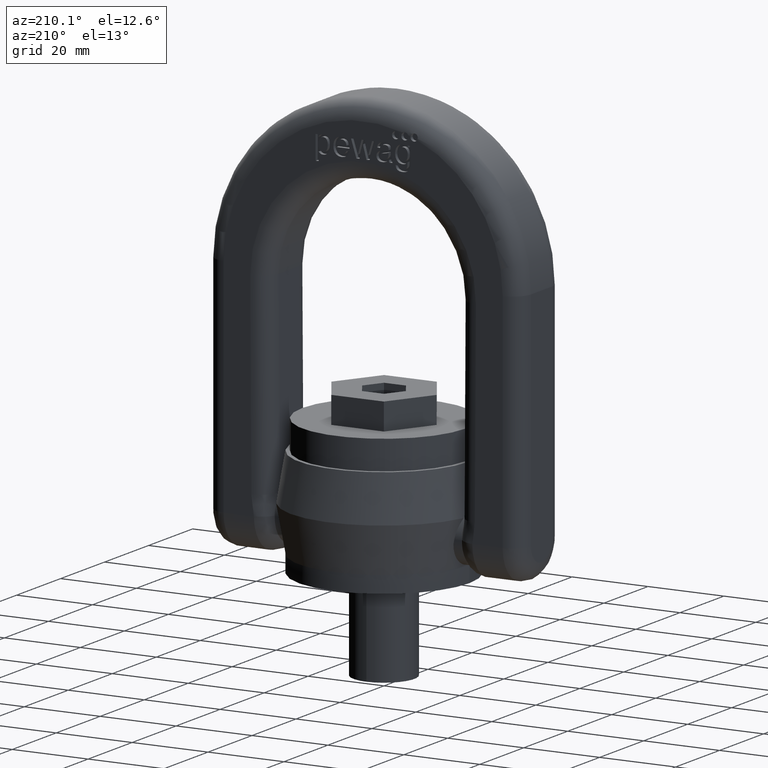
[diagram: clean part render]
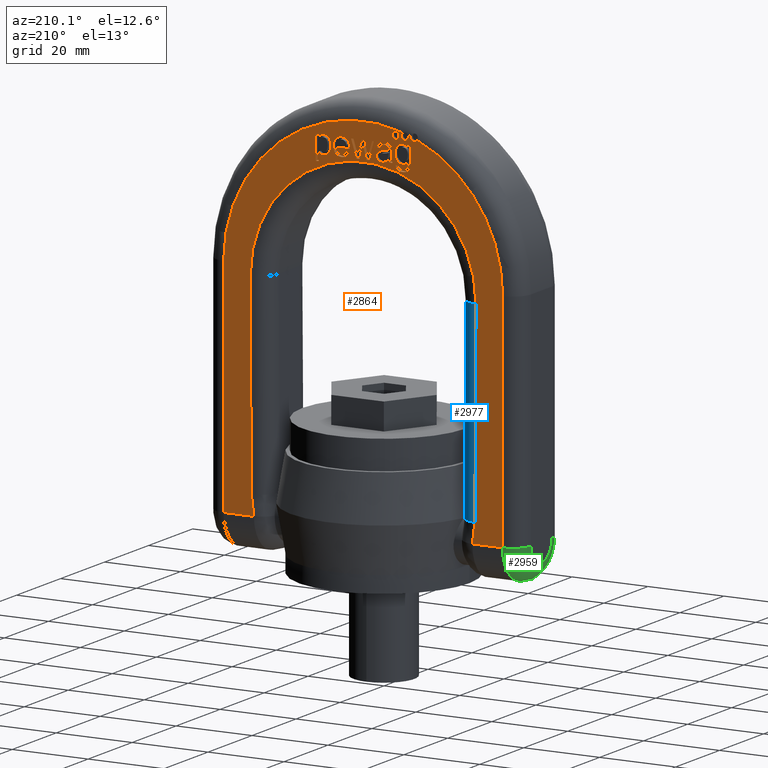
[diagram: same view with three faces highlighted in distinct colors, each labeled with its STEP entity id]
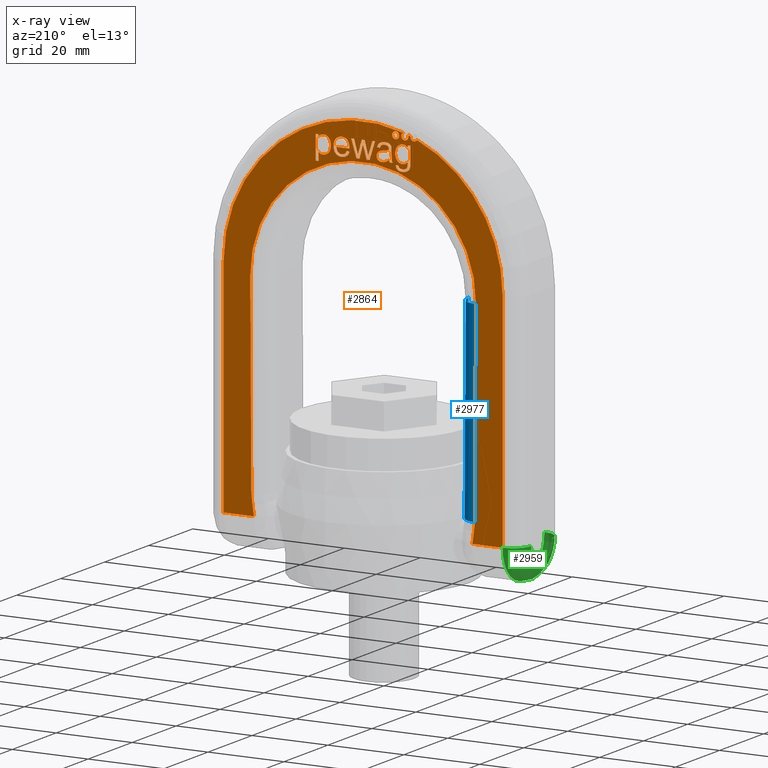
[diagram: x-ray of the same camera — body ghosted, the three highlighted faces saturated]
A machine part, auxiliary view with three faces highlighted in distinct colors.
The next image is the same camera in x-ray (body ghosted, the three faces saturated) — at least one of them is partly hidden behind the body in this view.
Their STEP definitions:

[orange] entity #2864 — the highlighted planar face has unit normal (-0, -1, 0).
#493=B_SPLINE_CURVE_WITH_KNOTS('',3,(#8098,#8099,#8100,#8101),
 .UNSPECIFIED.,.F.,.F.,(4,4),(0.,1.),.UNSPECIFIED.);
#494=B_SPLINE_CURVE_WITH_KNOTS('',3,(#8106,#8107,#8108,#8109),
 .UNSPECIFIED.,.F.,.F.,(4,4),(0.,1.),.UNSPECIFIED.);
#495=B_SPLINE_CURVE_WITH_KNOTS('',3,(#8111,#8112,#8113,#8114,#8115,#8116,
#8117,#8118,#8119,#8120),.UNSPECIFIED.,.F.,.F.,(4,2,2,2,4),(0.,0.228358481914092,
0.466434346037297,0.703045305681472,1.),.UNSPECIFIED.);
#496=B_SPLINE_CURVE_WITH_KNOTS('',3,(#8122,#8123,#8124,#8125),
 .UNSPECIFIED.,.F.,.F.,(4,4),(0.,1.),.UNSPECIFIED.);
#497=B_SPLINE_CURVE_WITH_KNOTS('',3,(#8129,#8130,#8131,#8132),
 .UNSPECIFIED.,.F.,.F.,(4,4),(0.,1.),.UNSPECIFIED.);
#498=B_SPLINE_CURVE_WITH_KNOTS('',3,(#8134,#8135,#8136,#8137),
 .UNSPECIFIED.,.F.,.F.,(4,4),(0.,1.),.UNSPECIFIED.);
#499=B_SPLINE_CURVE_WITH_KNOTS('',3,(#8139,#8140,#8141,#8142),
 .UNSPECIFIED.,.F.,.F.,(4,4),(0.,1.),.UNSPECIFIED.);
#500=B_SPLINE_CURVE_WITH_KNOTS('',3,(#8144,#8145,#8146,#8147),
 .UNSPECIFIED.,.F.,.F.,(4,4),(0.,1.),.UNSPECIFIED.);
#501=B_SPLINE_CURVE_WITH_KNOTS('',3,(#8149,#8150,#8151,#8152,#8153,#8154),
 .UNSPECIFIED.,.F.,.F.,(4,2,4),(0.,0.559782608695651,1.),.UNSPECIFIED.);
#502=B_SPLINE_CURVE_WITH_KNOTS('',3,(#8156,#8157,#8158,#8159),
 .UNSPECIFIED.,.F.,.F.,(4,4),(0.,1.),.UNSPECIFIED.);
#503=B_SPLINE_CURVE_WITH_KNOTS('',3,(#8163,#8164,#8165,#8166),
 .UNSPECIFIED.,.F.,.F.,(4,4),(0.,1.),.UNSPECIFIED.);
#504=B_SPLINE_CURVE_WITH_KNOTS('',3,(#8168,#8169,#8170,#8171,#8172,#8173),
 .UNSPECIFIED.,.F.,.F.,(4,2,4),(0.,0.476123595505616,1.),.UNSPECIFIED.);
#505=B_SPLINE_CURVE_WITH_KNOTS('',3,(#8175,#8176,#8177,#8178),
 .UNSPECIFIED.,.F.,.F.,(4,4),(0.,1.),.UNSPECIFIED.);
#506=B_SPLINE_CURVE_WITH_KNOTS('',3,(#8180,#8181,#8182,#8183,#8184,#8185,
#8186,#8187),.UNSPECIFIED.,.F.,.F.,(4,2,2,4),(0.,0.47235576923076,0.730769230769225,
1.),.UNSPECIFIED.);
#507=B_SPLINE_CURVE_WITH_KNOTS('',3,(#8191,#8192,#8193,#8194),
 .UNSPECIFIED.,.F.,.F.,(4,4),(0.,1.),.UNSPECIFIED.);
#508=B_SPLINE_CURVE_WITH_KNOTS('',3,(#8196,#8197,#8198,#8199),
 .UNSPECIFIED.,.F.,.F.,(4,4),(0.,1.),.UNSPECIFIED.);
#509=B_SPLINE_CURVE_WITH_KNOTS('',3,(#8201,#8202,#8203,#8204,#8205,#8206,
#8207,#8208,#8209,#8210),.UNSPECIFIED.,.F.,.F.,(4,2,2,2,4),(0.,0.230139294836346,
0.492074150143503,0.754009005450665,1.),.UNSPECIFIED.);
#510=B_SPLINE_CURVE_WITH_KNOTS('',3,(#8225,#8226,#8227,#8228),
 .UNSPECIFIED.,.F.,.F.,(4,4),(0.,1.),.UNSPECIFIED.);
#511=B_SPLINE_CURVE_WITH_KNOTS('',3,(#8236,#8237,#8238,#8239),
 .UNSPECIFIED.,.F.,.F.,(4,4),(0.,1.),.UNSPECIFIED.);
#512=B_SPLINE_CURVE_WITH_KNOTS('',3,(#8256,#8257,#8258,#8259,#8260,#8261),
 .UNSPECIFIED.,.F.,.F.,(4,2,4),(0.,0.329498767460973,1.),.UNSPECIFIED.);
#513=B_SPLINE_CURVE_WITH_KNOTS('',3,(#8263,#8264,#8265,#8266,#8267,#8268,
#8269,#8270),.UNSPECIFIED.,.F.,.F.,(4,2,2,4),(0.,0.361028692437345,0.681441656975489,
1.),.UNSPECIFIED.);
#514=B_SPLINE_CURVE_WITH_KNOTS('',3,(#8272,#8273,#8274,#8275),
 .UNSPECIFIED.,.F.,.F.,(4,4),(0.,1.),.UNSPECIFIED.);
#515=B_SPLINE_CURVE_WITH_KNOTS('',3,(#8279,#8280,#8281,#8282),
 .UNSPECIFIED.,.F.,.F.,(4,4),(0.,1.),.UNSPECIFIED.);
#516=B_SPLINE_CURVE_WITH_KNOTS('',3,(#8284,#8285,#8286,#8287,#8288,#8289),
 .UNSPECIFIED.,.F.,.F.,(4,2,4),(0.,0.555803571428577,1.),.UNSPECIFIED.);
#517=B_SPLINE_CURVE_WITH_KNOTS('',3,(#8291,#8292,#8293,#8294,#8295,#8296),
 .UNSPECIFIED.,.F.,.F.,(4,2,4),(0.,0.500000000000002,1.),.UNSPECIFIED.);
#518=B_SPLINE_CURVE_WITH_KNOTS('',3,(#8298,#8299,#8300,#8301,#8302,#8303,
#8304,#8305,#8306,#8307,#8308,#8309,#8310,#8311),.UNSPECIFIED.,.F.,.F.,
(4,2,2,2,2,2,4),(0.,0.15220134604599,0.327187324733594,0.502173303421195,
0.676318003365109,0.850462703309027,1.),.UNSPECIFIED.);
#519=B_SPLINE_CURVE_WITH_KNOTS('',3,(#8316,#8317,#8318,#8319),
 .UNSPECIFIED.,.F.,.F.,(4,4),(0.,1.),.UNSPECIFIED.);
#520=B_SPLINE_CURVE_WITH_KNOTS('',3,(#8324,#8325,#8326,#8327),
 .UNSPECIFIED.,.F.,.F.,(4,4),(0.,1.),.UNSPECIFIED.);
#521=B_SPLINE_CURVE_WITH_KNOTS('',3,(#8329,#8330,#8331,#8332,#8333,#8334),
 .UNSPECIFIED.,.F.,.F.,(4,2,4),(0.,0.434679334916864,1.),.UNSPECIFIED.);
#522=B_SPLINE_CURVE_WITH_KNOTS('',3,(#8336,#8337,#8338,#8339),
 .UNSPECIFIED.,.F.,.F.,(4,4),(0.,1.),.UNSPECIFIED.);
#523=B_SPLINE_CURVE_WITH_KNOTS('',3,(#8343,#8344,#8345,#8346),
 .UNSPECIFIED.,.F.,.F.,(4,4),(0.,1.),.UNSPECIFIED.);
#524=B_SPLINE_CURVE_WITH_KNOTS('',3,(#8348,#8349,#8350,#8351,#8352,#8353),
 .UNSPECIFIED.,.F.,.F.,(4,2,4),(0.,0.570469798657718,1.),.UNSPECIFIED.);
#525=B_SPLINE_CURVE_WITH_KNOTS('',3,(#8355,#8356,#8357,#8358,#8359,#8360,
#8361,#8362,#8363,#8364,#8365,#8366),.UNSPECIFIED.,.F.,.F.,(4,2,2,2,2,4),
(0.,0.122570626594234,0.245141253188471,0.49563753375242,0.746133814316365,
1.),.UNSPECIFIED.);
#526=B_SPLINE_CURVE_WITH_KNOTS('',3,(#8376,#8377,#8378,#8379),
 .UNSPECIFIED.,.F.,.F.,(4,4),(0.,1.),.UNSPECIFIED.);
#527=B_SPLINE_CURVE_WITH_KNOTS('',3,(#8381,#8382,#8383,#8384),
 .UNSPECIFIED.,.F.,.F.,(4,4),(0.,1.),.UNSPECIFIED.);
#528=B_SPLINE_CURVE_WITH_KNOTS('',3,(#8406,#8407,#8408,#8409),
 .UNSPECIFIED.,.F.,.F.,(4,4),(0.,1.),.UNSPECIFIED.);
#1792=LINE('',#6708,#2074);
#1793=LINE('',#6712,#2075);
#1922=LINE('',#8104,#2249);
#1923=LINE('',#8127,#2250);
#1924=LINE('',#8161,#2251);
#1925=LINE('',#8188,#2252);
#1926=LINE('',#8212,#2253);
#1927=LINE('',#8214,#2254);
#1928=LINE('',#8216,#2255);
#1929=LINE('',#8218,#2256);
#1930=LINE('',#8220,#2257);
#1931=LINE('',#8222,#2258);
#1932=LINE('',#8230,#2259);
#1933=LINE('',#8234,#2260);
#1934=LINE('',#8240,#2261);
#1935=LINE('',#8252,#2262);
#1936=LINE('',#8253,#2263);
#1937=LINE('',#8277,#2264);
#1938=LINE('',#8313,#2265);
#1939=LINE('',#8315,#2266);
#1940=LINE('',#8322,#2267);
#1941=LINE('',#8341,#2268);
#1942=LINE('',#8367,#2269);
#1943=LINE('',#8370,#2270);
#1944=LINE('',#8372,#2271);
#1945=LINE('',#8374,#2272);
#1946=LINE('',#8386,#2273);
#1947=LINE('',#8388,#2274);
#1948=LINE('',#8390,#2275);
#1949=LINE('',#8392,#2276);
#1950=LINE('',#8394,#2277);
#1951=LINE('',#8396,#2278);
#1952=LINE('',#8398,#2279);
#1953=LINE('',#8400,#2280);
#1954=LINE('',#8402,#2281);
#1955=LINE('',#8404,#2282);
#1956=LINE('',#8411,#2283);
#1957=LINE('',#8413,#2284);
#2074=VECTOR('',#5909,1.);
#2075=VECTOR('',#5914,1.);
#2249=VECTOR('',#6238,1.);
#2250=VECTOR('',#6239,1.);
#2251=VECTOR('',#6240,1.);
#2252=VECTOR('',#6241,1.);
#2253=VECTOR('',#6242,1.);
#2254=VECTOR('',#6243,1.);
#2255=VECTOR('',#6244,1.);
#2256=VECTOR('',#6245,1.);
#2257=VECTOR('',#6246,1.);
#2258=VECTOR('',#6247,1.);
#2259=VECTOR('',#6250,1.);
#2260=VECTOR('',#6253,1.);
#2261=VECTOR('',#6254,1.);
#2262=VECTOR('',#6265,1.);
#2263=VECTOR('',#6266,1.);
#2264=VECTOR('',#6267,1.);
#2265=VECTOR('',#6268,1.);
#2266=VECTOR('',#6269,1.);
#2267=VECTOR('',#6270,1.);
#2268=VECTOR('',#6271,1.);
#2269=VECTOR('',#6272,1.);
#2270=VECTOR('',#6273,1.);
#2271=VECTOR('',#6274,1.);
#2272=VECTOR('',#6275,1.);
#2273=VECTOR('',#6276,1.);
#2274=VECTOR('',#6277,1.);
#2275=VECTOR('',#6278,1.);
#2276=VECTOR('',#6279,1.);
#2277=VECTOR('',#6280,1.);
#2278=VECTOR('',#6281,1.);
#2279=VECTOR('',#6282,1.);
#2280=VECTOR('',#6283,1.);
#2281=VECTOR('',#6284,1.);
#2282=VECTOR('',#6285,1.);
#2283=VECTOR('',#6286,1.);
#2284=VECTOR('',#6287,1.);
#2693=PLANE('',#5717);
#2864=ADVANCED_FACE('',(#3040,#3041,#3042,#3043,#3044,#3045,#3046),#2693,
 .F.);
#3040=FACE_BOUND('',#3210,.T.);
#3041=FACE_BOUND('',#3211,.T.);
#3042=FACE_BOUND('',#3212,.T.);
#3043=FACE_BOUND('',#3213,.T.);
#3044=FACE_BOUND('',#3214,.T.);
#3045=FACE_BOUND('',#3215,.T.);
#3046=FACE_BOUND('',#3216,.T.);
#3210=EDGE_LOOP('',(#3953,#3954,#3955,#3956,#3957,#3958,#3959,#3960,#3961,
#3962,#3963,#3964,#3965,#3966,#3967,#3968,#3969));
#3211=EDGE_LOOP('',(#3970,#3971,#3972,#3973,#3974,#3975,#3976,#3977,#3978,
#3979));
#3212=EDGE_LOOP('',(#3980));
#3213=EDGE_LOOP('',(#3981,#3982,#3983,#3984,#3985,#3986,#3987,#3988,#3989,
#3990,#3991,#3992,#3993,#3994));
#3214=EDGE_LOOP('',(#3995,#3996,#3997,#3998,#3999,#4000,#4001,#4002,#4003,
#4004,#4005));
#3215=EDGE_LOOP('',(#4006,#4007,#4008,#4009,#4010,#4011,#4012,#4013,#4014));
#3216=EDGE_LOOP('',(#4015,#4016,#4017,#4018,#4019,#4020,#4021,#4022,#4023,
#4024,#4025,#4026,#4027,#4028,#4029,#4030,#4031,#4032,#4033));
#3953=ORIENTED_EDGE('',*,*,#5267,.F.);
#3954=ORIENTED_EDGE('',*,*,#5268,.F.);
#3955=ORIENTED_EDGE('',*,*,#5269,.F.);
#3956=ORIENTED_EDGE('',*,*,#5270,.F.);
#3957=ORIENTED_EDGE('',*,*,#5271,.F.);
#3958=ORIENTED_EDGE('',*,*,#5272,.F.);
#3959=ORIENTED_EDGE('',*,*,#5273,.F.);
#3960=ORIENTED_EDGE('',*,*,#5274,.F.);
#3961=ORIENTED_EDGE('',*,*,#5275,.F.);
#3962=ORIENTED_EDGE('',*,*,#5276,.F.);
#3963=ORIENTED_EDGE('',*,*,#5277,.F.);
#3964=ORIENTED_EDGE('',*,*,#5278,.F.);
#3965=ORIENTED_EDGE('',*,*,#5279,.F.);
#3966=ORIENTED_EDGE('',*,*,#5280,.F.);
#3967=ORIENTED_EDGE('',*,*,#5281,.F.);
#3968=ORIENTED_EDGE('',*,*,#5282,.F.);
#3969=ORIENTED_EDGE('',*,*,#5283,.F.);
#3970=ORIENTED_EDGE('',*,*,#5284,.F.);
#3971=ORIENTED_EDGE('',*,*,#5285,.F.);
#3972=ORIENTED_EDGE('',*,*,#5286,.F.);
#3973=ORIENTED_EDGE('',*,*,#5287,.F.);
#3974=ORIENTED_EDGE('',*,*,#5288,.F.);
#3975=ORIENTED_EDGE('',*,*,#5289,.F.);
#3976=ORIENTED_EDGE('',*,*,#5290,.F.);
#3977=ORIENTED_EDGE('',*,*,#5291,.F.);
#3978=ORIENTED_EDGE('',*,*,#5292,.F.);
#3979=ORIENTED_EDGE('',*,*,#5293,.F.);
#3980=ORIENTED_EDGE('',*,*,#5294,.F.);
#3981=ORIENTED_EDGE('',*,*,#4989,.T.);
#3982=ORIENTED_EDGE('',*,*,#5295,.T.);
#3983=ORIENTED_EDGE('',*,*,#5296,.T.);
#3984=ORIENTED_EDGE('',*,*,#5297,.T.);
#3985=ORIENTED_EDGE('',*,*,#5298,.T.);
#3986=ORIENTED_EDGE('',*,*,#5299,.T.);
#3987=ORIENTED_EDGE('',*,*,#4991,.T.);
#3988=ORIENTED_EDGE('',*,*,#5300,.T.);
#3989=ORIENTED_EDGE('',*,*,#5301,.T.);
#3990=ORIENTED_EDGE('',*,*,#5302,.F.);
#3991=ORIENTED_EDGE('',*,*,#5303,.T.);
#3992=ORIENTED_EDGE('',*,*,#5304,.F.);
#3993=ORIENTED_EDGE('',*,*,#5305,.T.);
#3994=ORIENTED_EDGE('',*,*,#5306,.T.);
#3995=ORIENTED_EDGE('',*,*,#5307,.F.);
#3996=ORIENTED_EDGE('',*,*,#5308,.F.);
#3997=ORIENTED_EDGE('',*,*,#5309,.F.);
#3998=ORIENTED_EDGE('',*,*,#5310,.F.);
#3999=ORIENTED_EDGE('',*,*,#5311,.F.);
#4000=ORIENTED_EDGE('',*,*,#5312,.F.);
#4001=ORIENTED_EDGE('',*,*,#5313,.F.);
#4002=ORIENTED_EDGE('',*,*,#5314,.F.);
#4003=ORIENTED_EDGE('',*,*,#5315,.F.);
#4004=ORIENTED_EDGE('',*,*,#5316,.F.);
#4005=ORIENTED_EDGE('',*,*,#5317,.F.);
#4006=ORIENTED_EDGE('',*,*,#5318,.F.);
#4007=ORIENTED_EDGE('',*,*,#5319,.F.);
#4008=ORIENTED_EDGE('',*,*,#5320,.F.);
#4009=ORIENTED_EDGE('',*,*,#5321,.F.);
#4010=ORIENTED_EDGE('',*,*,#5322,.F.);
#4011=ORIENTED_EDGE('',*,*,#5323,.F.);
#4012=ORIENTED_EDGE('',*,*,#5324,.F.);
#4013=ORIENTED_EDGE('',*,*,#5325,.F.);
#4014=ORIENTED_EDGE('',*,*,#5326,.F.);
#4015=ORIENTED_EDGE('',*,*,#5327,.F.);
#4016=ORIENTED_EDGE('',*,*,#5328,.F.);
#4017=ORIENTED_EDGE('',*,*,#5329,.F.);
#4018=ORIENTED_EDGE('',*,*,#5330,.F.);
#4019=ORIENTED_EDGE('',*,*,#5331,.F.);
#4020=ORIENTED_EDGE('',*,*,#5332,.F.);
#4021=ORIENTED_EDGE('',*,*,#5333,.F.);
#4022=ORIENTED_EDGE('',*,*,#5334,.F.);
#4023=ORIENTED_EDGE('',*,*,#5335,.F.);
#4024=ORIENTED_EDGE('',*,*,#5336,.F.);
#4025=ORIENTED_EDGE('',*,*,#5337,.F.);
#4026=ORIENTED_EDGE('',*,*,#5338,.F.);
#4027=ORIENTED_EDGE('',*,*,#5339,.F.);
#4028=ORIENTED_EDGE('',*,*,#5340,.F.);
#4029=ORIENTED_EDGE('',*,*,#5341,.F.);
#4030=ORIENTED_EDGE('',*,*,#5342,.F.);
#4031=ORIENTED_EDGE('',*,*,#5343,.F.);
#4032=ORIENTED_EDGE('',*,*,#5344,.F.);
#4033=ORIENTED_EDGE('',*,*,#5345,.F.);
#4577=VERTEX_POINT('',#6707);
#4578=VERTEX_POINT('',#6709);
#4579=VERTEX_POINT('',#6713);
#4580=VERTEX_POINT('',#6714);
#4769=VERTEX_POINT('',#8102);
#4770=VERTEX_POINT('',#8103);
#4771=VERTEX_POINT('',#8105);
#4772=VERTEX_POINT('',#8110);
#4773=VERTEX_POINT('',#8121);
#4774=VERTEX_POINT('',#8126);
#4775=VERTEX_POINT('',#8128);
#4776=VERTEX_POINT('',#8133);
#4777=VERTEX_POINT('',#8138);
#4778=VERTEX_POINT('',#8143);
#4779=VERTEX_POINT('',#8148);
#4780=VERTEX_POINT('',#8155);
#4781=VERTEX_POINT('',#8160);
#4782=VERTEX_POINT('',#8162);
#4783=VERTEX_POINT('',#8167);
#4784=VERTEX_POINT('',#8174);
#4785=VERTEX_POINT('',#8179);
#4786=VERTEX_POINT('',#8189);
#4787=VERTEX_POINT('',#8190);
#4788=VERTEX_POINT('',#8195);
#4789=VERTEX_POINT('',#8200);
#4790=VERTEX_POINT('',#8211);
#4791=VERTEX_POINT('',#8213);
#4792=VERTEX_POINT('',#8215);
#4793=VERTEX_POINT('',#8217);
#4794=VERTEX_POINT('',#8219);
#4795=VERTEX_POINT('',#8221);
#4796=VERTEX_POINT('',#8224);
#4797=VERTEX_POINT('',#8229);
#4798=VERTEX_POINT('',#8231);
#4799=VERTEX_POINT('',#8233);
#4800=VERTEX_POINT('',#8235);
#4801=VERTEX_POINT('',#8241);
#4802=VERTEX_POINT('',#8243);
#4803=VERTEX_POINT('',#8245);
#4804=VERTEX_POINT('',#8247);
#4805=VERTEX_POINT('',#8249);
#4806=VERTEX_POINT('',#8251);
#4807=VERTEX_POINT('',#8254);
#4808=VERTEX_POINT('',#8255);
#4809=VERTEX_POINT('',#8262);
#4810=VERTEX_POINT('',#8271);
#4811=VERTEX_POINT('',#8276);
#4812=VERTEX_POINT('',#8278);
#4813=VERTEX_POINT('',#8283);
#4814=VERTEX_POINT('',#8290);
#4815=VERTEX_POINT('',#8297);
#4816=VERTEX_POINT('',#8312);
#4817=VERTEX_POINT('',#8314);
#4818=VERTEX_POINT('',#8320);
#4819=VERTEX_POINT('',#8321);
#4820=VERTEX_POINT('',#8323);
#4821=VERTEX_POINT('',#8328);
#4822=VERTEX_POINT('',#8335);
#4823=VERTEX_POINT('',#8340);
#4824=VERTEX_POINT('',#8342);
#4825=VERTEX_POINT('',#8347);
#4826=VERTEX_POINT('',#8354);
#4827=VERTEX_POINT('',#8368);
#4828=VERTEX_POINT('',#8369);
#4829=VERTEX_POINT('',#8371);
#4830=VERTEX_POINT('',#8373);
#4831=VERTEX_POINT('',#8375);
#4832=VERTEX_POINT('',#8380);
#4833=VERTEX_POINT('',#8385);
#4834=VERTEX_POINT('',#8387);
#4835=VERTEX_POINT('',#8389);
#4836=VERTEX_POINT('',#8391);
#4837=VERTEX_POINT('',#8393);
#4838=VERTEX_POINT('',#8395);
#4839=VERTEX_POINT('',#8397);
#4840=VERTEX_POINT('',#8399);
#4841=VERTEX_POINT('',#8401);
#4842=VERTEX_POINT('',#8403);
#4843=VERTEX_POINT('',#8405);
#4844=VERTEX_POINT('',#8410);
#4845=VERTEX_POINT('',#8412);
#4989=EDGE_CURVE('',#4578,#4577,#1792,.T.);
#4991=EDGE_CURVE('',#4579,#4580,#1793,.T.);
#5267=EDGE_CURVE('',#4769,#4770,#493,.T.);
#5268=EDGE_CURVE('',#4771,#4769,#1922,.T.);
#5269=EDGE_CURVE('',#4772,#4771,#494,.T.);
#5270=EDGE_CURVE('',#4773,#4772,#495,.T.);
#5271=EDGE_CURVE('',#4774,#4773,#496,.T.);
#5272=EDGE_CURVE('',#4775,#4774,#1923,.T.);
#5273=EDGE_CURVE('',#4776,#4775,#497,.T.);
#5274=EDGE_CURVE('',#4777,#4776,#498,.T.);
#5275=EDGE_CURVE('',#4778,#4777,#499,.T.);
#5276=EDGE_CURVE('',#4779,#4778,#500,.T.);
#5277=EDGE_CURVE('',#4780,#4779,#501,.T.);
#5278=EDGE_CURVE('',#4781,#4780,#502,.T.);
#5279=EDGE_CURVE('',#4782,#4781,#1924,.T.);
#5280=EDGE_CURVE('',#4783,#4782,#503,.T.);
#5281=EDGE_CURVE('',#4784,#4783,#504,.T.);
#5282=EDGE_CURVE('',#4785,#4784,#505,.T.);
#5283=EDGE_CURVE('',#4770,#4785,#506,.T.);
#5284=EDGE_CURVE('',#4786,#4787,#1925,.T.);
#5285=EDGE_CURVE('',#4788,#4786,#507,.T.);
#5286=EDGE_CURVE('',#4789,#4788,#508,.T.);
#5287=EDGE_CURVE('',#4790,#4789,#509,.T.);
#5288=EDGE_CURVE('',#4791,#4790,#1926,.T.);
#5289=EDGE_CURVE('',#4792,#4791,#1927,.T.);
#5290=EDGE_CURVE('',#4793,#4792,#1928,.T.);
#5291=EDGE_CURVE('',#4794,#4793,#1929,.T.);
#5292=EDGE_CURVE('',#4795,#4794,#1930,.T.);
#5293=EDGE_CURVE('',#4787,#4795,#1931,.T.);
#5294=EDGE_CURVE('',#4796,#4796,#5571,.T.);
#5295=EDGE_CURVE('',#4577,#4797,#510,.T.);
#5296=EDGE_CURVE('',#4797,#4798,#1932,.T.);
#5297=EDGE_CURVE('',#4798,#4799,#5572,.T.);
#5298=EDGE_CURVE('',#4799,#4800,#1933,.T.);
#5299=EDGE_CURVE('',#4800,#4579,#511,.T.);
#5300=EDGE_CURVE('',#4580,#4801,#1934,.T.);
#5301=EDGE_CURVE('',#4801,#4802,#5573,.T.);
#5302=EDGE_CURVE('',#4803,#4802,#5574,.T.);
#5303=EDGE_CURVE('',#4803,#4804,#5575,.T.);
#5304=EDGE_CURVE('',#4805,#4804,#5576,.T.);
#5305=EDGE_CURVE('',#4805,#4806,#5577,.T.);
#5306=EDGE_CURVE('',#4806,#4578,#1935,.T.);
#5307=EDGE_CURVE('',#4807,#4808,#1936,.T.);
#5308=EDGE_CURVE('',#4809,#4807,#512,.T.);
#5309=EDGE_CURVE('',#4810,#4809,#513,.T.);
#5310=EDGE_CURVE('',#4811,#4810,#514,.T.);
#5311=EDGE_CURVE('',#4812,#4811,#1937,.T.);
#5312=EDGE_CURVE('',#4813,#4812,#515,.T.);
#5313=EDGE_CURVE('',#4814,#4813,#516,.T.);
#5314=EDGE_CURVE('',#4815,#4814,#517,.T.);
#5315=EDGE_CURVE('',#4816,#4815,#518,.T.);
#5316=EDGE_CURVE('',#4817,#4816,#1938,.T.);
#5317=EDGE_CURVE('',#4808,#4817,#1939,.T.);
#5318=EDGE_CURVE('',#4818,#4819,#519,.T.);
#5319=EDGE_CURVE('',#4820,#4818,#1940,.T.);
#5320=EDGE_CURVE('',#4821,#4820,#520,.T.);
#5321=EDGE_CURVE('',#4822,#4821,#521,.T.);
#5322=EDGE_CURVE('',#4823,#4822,#522,.T.);
#5323=EDGE_CURVE('',#4824,#4823,#1941,.T.);
#5324=EDGE_CURVE('',#4825,#4824,#523,.T.);
#5325=EDGE_CURVE('',#4826,#4825,#524,.T.);
#5326=EDGE_CURVE('',#4819,#4826,#525,.T.);
#5327=EDGE_CURVE('',#4827,#4828,#1942,.T.);
#5328=EDGE_CURVE('',#4829,#4827,#1943,.T.);
#5329=EDGE_CURVE('',#4830,#4829,#1944,.T.);
#5330=EDGE_CURVE('',#4831,#4830,#1945,.T.);
#5331=EDGE_CURVE('',#4832,#4831,#526,.T.);
#5332=EDGE_CURVE('',#4833,#4832,#527,.T.);
#5333=EDGE_CURVE('',#4834,#4833,#1946,.T.);
#5334=EDGE_CURVE('',#4835,#4834,#1947,.T.);
#5335=EDGE_CURVE('',#4836,#4835,#1948,.T.);
#5336=EDGE_CURVE('',#4837,#4836,#1949,.T.);
#5337=EDGE_CURVE('',#4838,#4837,#1950,.T.);
#5338=EDGE_CURVE('',#4839,#4838,#1951,.T.);
#5339=EDGE_CURVE('',#4840,#4839,#1952,.T.);
#5340=EDGE_CURVE('',#4841,#4840,#1953,.T.);
#5341=EDGE_CURVE('',#4842,#4841,#1954,.T.);
#5342=EDGE_CURVE('',#4843,#4842,#1955,.T.);
#5343=EDGE_CURVE('',#4844,#4843,#528,.T.);
#5344=EDGE_CURVE('',#4845,#4844,#1956,.T.);
#5345=EDGE_CURVE('',#4828,#4845,#1957,.T.);
#5571=CIRCLE('',#5710,0.9375);
#5572=CIRCLE('',#5711,29.75);
#5573=CIRCLE('',#5712,36.75);
#5574=CIRCLE('',#5713,0.9375);
#5575=CIRCLE('',#5714,36.75);
#5576=CIRCLE('',#5715,0.9375);
#5577=CIRCLE('',#5716,36.75);
#5710=AXIS2_PLACEMENT_3D('',#8223,#6248,#6249);
#5711=AXIS2_PLACEMENT_3D('',#8232,#6251,#6252);
#5712=AXIS2_PLACEMENT_3D('',#8242,#6255,#6256);
#5713=AXIS2_PLACEMENT_3D('',#8244,#6257,#6258);
#5714=AXIS2_PLACEMENT_3D('',#8246,#6259,#6260);
#5715=AXIS2_PLACEMENT_3D('',#8248,#6261,#6262);
#5716=AXIS2_PLACEMENT_3D('',#8250,#6263,#6264);
#5717=AXIS2_PLACEMENT_3D('',#8414,#6288,#6289);
#5909=DIRECTION('',(-1.,2.34291072916505E-15,1.44314929616228E-15));
#5914=DIRECTION('',(-1.,2.34291072916505E-15,1.12861527352708E-15));
#6238=DIRECTION('',(-1.,2.34291072916505E-15,0.));
#6239=DIRECTION('',(0.989370262977938,-2.31800620424786E-15,-0.145418302613414));
#6240=DIRECTION('',(-0.991928985003783,2.32400106153516E-15,-0.126794671454937));
#6241=DIRECTION('',(1.,-2.34291072916505E-15,0.));
#6242=DIRECTION('',(-1.,2.34291072916505E-15,0.));
#6243=DIRECTION('',(0.,0.,1.));
#6244=DIRECTION('',(-1.,2.34291072916505E-15,0.));
#6245=DIRECTION('',(0.,0.,-1.));
#6246=DIRECTION('',(1.,-2.34291072916505E-15,0.));
#6247=DIRECTION('',(0.,0.,1.));
#6248=DIRECTION('',(2.34291072916505E-15,1.,0.));
#6249=DIRECTION('',(0.,0.,0.999999999999994));
#6250=DIRECTION('',(0.00584341179519027,-1.36905921898809E-17,0.999982927123555));
#6251=DIRECTION('',(-2.34291072916505E-15,-1.,0.));
#6252=DIRECTION('',(1.,-2.33240131223772E-15,0.));
#6253=DIRECTION('',(0.00584341179519027,-1.36905921898809E-17,-0.999982927123555));
#6254=DIRECTION('',(4.06377388222971E-16,-9.52105942957669E-31,1.));
#6255=DIRECTION('',(2.34291072916505E-15,1.,0.));
#6256=DIRECTION('',(1.,-2.36016799452627E-15,0.));
#6257=DIRECTION('',(2.34291072916505E-15,1.,0.));
#6258=DIRECTION('',(0.,0.,0.999999999999994));
#6259=DIRECTION('',(2.34291072916505E-15,1.,0.));
#6260=DIRECTION('',(1.,-2.36016799452627E-15,0.));
#6261=DIRECTION('',(2.34291072916505E-15,1.,0.));
#6262=DIRECTION('',(0.,0.,0.999999999999994));
#6263=DIRECTION('',(2.34291072916505E-15,1.,0.));
#6264=DIRECTION('',(1.,-2.36016799452627E-15,0.));
#6265=DIRECTION('',(4.06377388222971E-16,-9.52105942957669E-31,-1.));
#6266=DIRECTION('',(1.,-2.34291072916505E-15,0.));
#6267=DIRECTION('',(0.988666662925713,-2.31635773213646E-15,0.150127377980618));
#6268=DIRECTION('',(1.,-2.34291072916505E-15,0.));
#6269=DIRECTION('',(0.,0.,-1.));
#6270=DIRECTION('',(-1.,2.34291072916505E-15,0.));
#6271=DIRECTION('',(0.992687288142565,-2.32577769809497E-15,0.120714323757207));
#6272=DIRECTION('',(1.,-2.34291072916505E-15,0.));
#6273=DIRECTION('',(-0.304245570453574,7.12820211316619E-16,0.952593634693923));
#6274=DIRECTION('',(-1.,2.34291072916505E-15,0.));
#6275=DIRECTION('',(-0.259135455314435,6.0713123856326E-16,-0.965840988879112));
#6276=DIRECTION('',(-1.,2.34291072916505E-15,0.));
#6277=DIRECTION('',(-0.254367653151691,5.95960703721632E-16,0.967107593305988));
#6278=DIRECTION('',(-1.,2.34291072916505E-15,0.));
#6279=DIRECTION('',(-0.298320908470944,6.9893925719084E-16,-0.954465628280595));
#6280=DIRECTION('',(1.,-2.34291072916505E-15,0.));
#6281=DIRECTION('',(0.269463722620021,-6.31329446847201E-16,0.963010541059526));
#6282=DIRECTION('',(0.247736970080357,-5.80425605212109E-16,-0.968827329122896));
#6283=DIRECTION('',(0.26605956351618,-6.23353805959027E-16,-0.963956590652079));
#6284=DIRECTION('',(1.,-2.34291072916505E-15,0.));
#6285=DIRECTION('',(0.253070161005815,-5.92920795452051E-16,0.96744792811215));
#6286=DIRECTION('',(1.,-2.34291072916505E-15,0.));
#6287=DIRECTION('',(0.287282618696351,-6.73077529646312E-16,-0.957845862858407));
#6288=DIRECTION('',(-2.34291072916505E-15,-1.,0.));
#6289=DIRECTION('',(0.,0.,1.));
#6707=CARTESIAN_POINT('',(28.7875321066015,9.49999999999993,11.7));
#6708=CARTESIAN_POINT('',(-5.89916534468686E-14,9.5,11.7));
#6709=CARTESIAN_POINT('',(36.75,9.49999999999991,11.7));
#6712=CARTESIAN_POINT('',(-4.12833879725066E-14,9.5,11.7));
#6713=CARTESIAN_POINT('',(-28.7875321066015,9.50000000000007,11.7));
#6714=CARTESIAN_POINT('',(-36.75,9.50000000000009,11.7000000000001));
#8098=CARTESIAN_POINT('',(-7.78047113945466,9.50000000000002,98.3333333333333));
#8099=CARTESIAN_POINT('',(-7.66171015813105,9.50000000000002,98.5379892555641));
#8100=CARTESIAN_POINT('',(-7.59012819678531,9.50000000000002,98.7474418009721));
#8101=CARTESIAN_POINT('',(-7.56572525541744,9.50000000000002,98.9616909695574));
#8102=CARTESIAN_POINT('',(-7.78047113945466,9.50000000000002,98.3333333333333));
#8103=CARTESIAN_POINT('',(-7.56572525541744,9.50000000000002,98.9616909695574));
#8104=CARTESIAN_POINT('',(2.2257651927068E-14,9.5,98.3333333333333));
#8105=CARTESIAN_POINT('',(-6.96053230949436,9.50000000000002,98.3333333333333));
#8106=CARTESIAN_POINT('',(-6.79947289646644,9.50000000000002,98.8913404962906));
#8107=CARTESIAN_POINT('',(-6.83038328886574,9.50000000000002,98.661102583781));
#8108=CARTESIAN_POINT('',(-6.88406975987504,9.50000000000002,98.4756331542594));
#8109=CARTESIAN_POINT('',(-6.96053230949436,9.50000000000002,98.3333333333333));
#8110=CARTESIAN_POINT('',(-6.79947289646644,9.50000000000002,98.8913404962906));
#8111=CARTESIAN_POINT('',(-3.93782130539466,9.50000000000001,100.45823740087));
#8112=CARTESIAN_POINT('',(-3.66776208759028,9.50000000000001,100.215208493221));
#8113=CARTESIAN_POINT('',(-3.53273247868809,9.50000000000001,99.9066257354822));
#8114=CARTESIAN_POINT('',(-3.53273247868809,9.50000000000001,99.1391660271169));
#8115=CARTESIAN_POINT('',(-3.67264267586385,9.50000000000001,98.8241877718087));
#8116=CARTESIAN_POINT('',(-4.23380541710737,9.50000000000001,98.3460011590625));
#8117=CARTESIAN_POINT('',(-4.6178499381792,9.50000000000001,98.2262087490407));
#8118=CARTESIAN_POINT('',(-5.71110171145961,9.50000000000001,98.2262087490407));
#8119=CARTESIAN_POINT('',(-6.27562308843625,9.50000000000001,98.4484522895881));
#8120=CARTESIAN_POINT('',(-6.79947289646644,9.50000000000002,98.8913404962906));
#8121=CARTESIAN_POINT('',(-3.93782130539466,9.50000000000001,100.45823740087));
#8122=CARTESIAN_POINT('',(-5.34668445369947,9.50000000000001,100.942696341775));
#8123=CARTESIAN_POINT('',(-4.67804386021994,9.50000000000001,100.862752622154));
#8124=CARTESIAN_POINT('',(-4.20950738595691,9.50000000000001,100.701266308519));
#8125=CARTESIAN_POINT('',(-3.93782130539466,9.50000000000001,100.45823740087));
#8126=CARTESIAN_POINT('',(-5.34668445369947,9.50000000000001,100.942696341775));
#8127=CARTESIAN_POINT('',(4.62648596825265,9.49999999999999,99.4768330864262));
#8128=CARTESIAN_POINT('',(-6.07551896921974,9.50000000000001,101.049820926068));
#8129=CARTESIAN_POINT('',(-6.74741328821499,9.50000000000002,101.206510616526));
#8130=CARTESIAN_POINT('',(-6.5700852476085,9.50000000000002,101.144154515221));
#8131=CARTESIAN_POINT('',(-6.34720504978199,9.50000000000002,101.091391660271));
#8132=CARTESIAN_POINT('',(-6.07551896921974,9.50000000000001,101.049820926068));
#8133=CARTESIAN_POINT('',(-6.74741328821499,9.50000000000002,101.206510616526));
#8134=CARTESIAN_POINT('',(-6.72626407236284,9.50000000000002,101.694167306216));
#8135=CARTESIAN_POINT('',(-6.73927897442571,9.50000000000002,101.599833717063));
#8136=CARTESIAN_POINT('',(-6.74741328821499,9.50000000000002,101.436748529036));
#8137=CARTESIAN_POINT('',(-6.74741328821499,9.50000000000002,101.206510616526));
#8138=CARTESIAN_POINT('',(-6.72626407236284,9.50000000000002,101.694167306216));
#8139=CARTESIAN_POINT('',(-6.59774191449208,9.50000000000002,101.991557943208));
#8140=CARTESIAN_POINT('',(-6.66769701307996,9.50000000000002,101.889229982093));
#8141=CARTESIAN_POINT('',(-6.71162230754212,9.50000000000002,101.790099769762));
#8142=CARTESIAN_POINT('',(-6.72626407236284,9.50000000000002,101.694167306216));
#8143=CARTESIAN_POINT('',(-6.59774191449208,9.50000000000002,101.991557943208));
#8144=CARTESIAN_POINT('',(-6.25772759809981,9.50000000000001,102.237784599642));
#8145=CARTESIAN_POINT('',(-6.41390642285415,9.50000000000002,102.175428498337));
#8146=CARTESIAN_POINT('',(-6.52615995314634,9.50000000000002,102.093885904323));
#8147=CARTESIAN_POINT('',(-6.59774191449208,9.50000000000002,101.991557943208));
#8148=CARTESIAN_POINT('',(-6.25772759809981,9.50000000000001,102.237784599642));
#8149=CARTESIAN_POINT('',(-4.83259582221642,9.50000000000001,102.148247633666));
#8150=CARTESIAN_POINT('',(-5.02781935315935,9.50000000000001,102.271360961883));
#8151=CARTESIAN_POINT('',(-5.29299798269017,9.50000000000001,102.332118188795));
#8152=CARTESIAN_POINT('',(-5.89168347758182,9.50000000000001,102.332118188795));
#8153=CARTESIAN_POINT('',(-6.10154877334547,9.50000000000001,102.301739575339));
#8154=CARTESIAN_POINT('',(-6.25772759809981,9.50000000000001,102.237784599642));
#8155=CARTESIAN_POINT('',(-4.83259582221642,9.50000000000001,102.148247633666));
#8156=CARTESIAN_POINT('',(-4.43076072102556,9.50000000000001,101.467127142492));
#8157=CARTESIAN_POINT('',(-4.5023426823713,9.50000000000001,101.799693016117));
#8158=CARTESIAN_POINT('',(-4.63737229127349,9.50000000000001,102.026733179841));
#8159=CARTESIAN_POINT('',(-4.83259582221642,9.50000000000001,102.148247633666));
#8160=CARTESIAN_POINT('',(-4.43076072102556,9.50000000000001,101.467127142492));
#8161=CARTESIAN_POINT('',(-4.2804372616315,9.50000000000001,101.486342443117));
#8162=CARTESIAN_POINT('',(-3.66776208759028,9.50000000000001,101.56465848043));
#8163=CARTESIAN_POINT('',(-4.3136266024598,9.50000000000001,102.608723458685));
#8164=CARTESIAN_POINT('',(-3.9671048350361,9.50000000000001,102.376886671783));
#8165=CARTESIAN_POINT('',(-3.75073208824102,9.50000000000001,102.028332054234));
#8166=CARTESIAN_POINT('',(-3.66776208759028,9.50000000000001,101.56465848043));
#8167=CARTESIAN_POINT('',(-4.3136266024598,9.50000000000001,102.608723458685));
#8168=CARTESIAN_POINT('',(-6.96215917225222,9.50000000000002,102.71744691737));
#8169=CARTESIAN_POINT('',(-6.70348799375283,9.50000000000002,102.878933231005));
#8170=CARTESIAN_POINT('',(-6.2967723042884,9.50000000000002,102.958876950627));
#8171=CARTESIAN_POINT('',(-5.13844602069368,9.50000000000001,102.958876950627));
#8172=CARTESIAN_POINT('',(-4.6601483698835,9.50000000000001,102.84215911998));
#8173=CARTESIAN_POINT('',(-4.3136266024598,9.50000000000001,102.608723458685));
#8174=CARTESIAN_POINT('',(-6.96215917225222,9.50000000000002,102.71744691737));
#8175=CARTESIAN_POINT('',(-7.43882996030454,9.50000000000002,102.135456638526));
#8176=CARTESIAN_POINT('',(-7.38026290102165,9.50000000000002,102.364095676644));
#8177=CARTESIAN_POINT('',(-7.2208303507516,9.50000000000002,102.557559478127));
#8178=CARTESIAN_POINT('',(-6.96215917225222,9.50000000000002,102.71744691737));
#8179=CARTESIAN_POINT('',(-7.43882996030454,9.50000000000002,102.135456638526));
#8180=CARTESIAN_POINT('',(-7.56572525541744,9.50000000000002,98.9616909695574));
#8181=CARTESIAN_POINT('',(-7.53969545129172,9.50000000000002,99.1759401381428));
#8182=CARTESIAN_POINT('',(-7.52830741198671,9.50000000000002,99.5980429777437));
#8183=CARTESIAN_POINT('',(-7.52830741198671,9.50000000000002,100.57015860834));
#8184=CARTESIAN_POINT('',(-7.52830741198671,9.50000000000002,100.913916602712));
#8185=CARTESIAN_POINT('',(-7.52830741198671,9.50000000000002,101.615822460987));
#8186=CARTESIAN_POINT('',(-7.49902388234527,9.50000000000002,101.908416474802));
#8187=CARTESIAN_POINT('',(-7.43882996030454,9.50000000000002,102.135456638526));
#8188=CARTESIAN_POINT('',(2.2257651927068E-14,9.5,102.272959836275));
#8189=CARTESIAN_POINT('',(11.7711654844797,9.49999999999997,102.272959836275));
#8190=CARTESIAN_POINT('',(11.7890609748162,9.49999999999997,102.272959836275));
#8191=CARTESIAN_POINT('',(10.4566603761307,9.49999999999998,102.958876950627));
#8192=CARTESIAN_POINT('',(11.0407041062016,9.49999999999997,102.958876950627));
#8193=CARTESIAN_POINT('',(11.4799570508232,9.49999999999997,102.73023791251));
#8194=CARTESIAN_POINT('',(11.7711654844797,9.49999999999997,102.272959836275));
#8195=CARTESIAN_POINT('',(10.4566603761307,9.49999999999998,102.958876950627));
#8196=CARTESIAN_POINT('',(9.02502114921587,9.49999999999998,102.312931696086));
#8197=CARTESIAN_POINT('',(9.37642350491314,9.49999999999998,102.743028907649));
#8198=CARTESIAN_POINT('',(9.85309429296546,9.49999999999998,102.958876950627));
#8199=CARTESIAN_POINT('',(10.4566603761307,9.49999999999998,102.958876950627));
#8200=CARTESIAN_POINT('',(9.02502114921587,9.49999999999998,102.312931696086));
#8201=CARTESIAN_POINT('',(11.6979566603761,9.49999999999997,98.806600153492));
#8202=CARTESIAN_POINT('',(11.4002407756882,9.49999999999997,98.4196725505244));
#8203=CARTESIAN_POINT('',(11.0032862627709,9.49999999999997,98.2262087490407));
#8204=CARTESIAN_POINT('',(9.94582547016335,9.49999999999998,98.2262087490407));
#8205=CARTESIAN_POINT('',(9.46915468211103,9.49999999999998,98.4436556664109));
#8206=CARTESIAN_POINT('',(8.69476800937074,9.49999999999998,99.3102455871067));
#8207=CARTESIAN_POINT('',(8.50117134118567,9.49999999999998,99.8954336147352));
#8208=CARTESIAN_POINT('',(8.50117134118567,9.49999999999998,101.321629572781));
#8209=CARTESIAN_POINT('',(8.67524565627645,9.49999999999998,101.882834484523));
#8210=CARTESIAN_POINT('',(9.02502114921587,9.49999999999998,102.312931696086));
#8211=CARTESIAN_POINT('',(11.6979566603761,9.49999999999997,98.806600153492));
#8212=CARTESIAN_POINT('',(2.2257651927068E-14,9.5,98.806600153492));
#8213=CARTESIAN_POINT('',(11.7191058762283,9.49999999999997,98.806600153492));
#8214=CARTESIAN_POINT('',(11.7191058762283,9.49999999999997,68.));
#8215=CARTESIAN_POINT('',(11.7191058762283,9.49999999999997,96.593757994372));
#8216=CARTESIAN_POINT('',(2.2257651927068E-14,9.5,96.593757994372));
#8217=CARTESIAN_POINT('',(12.5,9.49999999999997,96.593757994372));
#8218=CARTESIAN_POINT('',(12.5,9.49999999999997,68.));
#8219=CARTESIAN_POINT('',(12.5,9.49999999999997,102.856548989511));
#8220=CARTESIAN_POINT('',(2.2257651927068E-14,9.5,102.856548989511));
#8221=CARTESIAN_POINT('',(11.7890609748162,9.49999999999997,102.856548989511));
#8222=CARTESIAN_POINT('',(11.7890609748162,9.49999999999997,68.));
#8223=CARTESIAN_POINT('',(-8.56249999999996,9.50000000000002,104.895833333333));
#8224=CARTESIAN_POINT('',(-8.56249999999996,9.50000000000002,105.833333333333));
#8225=CARTESIAN_POINT('',(28.7875321066015,9.49999999999993,11.7));
#8226=CARTESIAN_POINT('',(28.8390557232866,9.49999999999993,13.4195525442105));
#8227=CARTESIAN_POINT('',(29.4412395525734,9.49999999999993,15.0749101874936));
#8228=CARTESIAN_POINT('',(29.4513663292006,9.49999999999993,16.8079052405349));
#8229=CARTESIAN_POINT('',(29.4513663292006,9.49999999999993,16.8079052405349));
#8230=CARTESIAN_POINT('',(29.7494920819258,9.49999999999993,67.8261584990931));
#8231=CARTESIAN_POINT('',(29.7494920819258,9.49999999999993,67.8261584990931));
#8232=CARTESIAN_POINT('',(1.1128825963534E-14,9.5,68.));
#8233=CARTESIAN_POINT('',(-29.7494920819257,9.50000000000007,67.8261584990931));
#8234=CARTESIAN_POINT('',(-29.7494920819257,9.50000000000007,67.8261584990931));
#8235=CARTESIAN_POINT('',(-29.4513663292005,9.50000000000007,16.8079052405348));
#8236=CARTESIAN_POINT('',(-29.4513663292005,9.50000000000007,16.8079052405348));
#8237=CARTESIAN_POINT('',(-29.4412395525734,9.50000000000007,15.0749101874935));
#8238=CARTESIAN_POINT('',(-28.8390557232867,9.50000000000007,13.4195525442105));
#8239=CARTESIAN_POINT('',(-28.7875321066016,9.50000000000007,11.7));
#8240=CARTESIAN_POINT('',(-36.75,9.50000000000009,68.));
#8241=CARTESIAN_POINT('',(-36.75,9.50000000000009,70.5));
#8242=CARTESIAN_POINT('',(1.1128825963534E-14,9.5,70.5));
#8243=CARTESIAN_POINT('',(-14.2240414007112,9.50000000000003,104.38567759734));
#8244=CARTESIAN_POINT('',(-13.4375,9.50000000000003,104.895833333333));
#8245=CARTESIAN_POINT('',(-12.5134325833668,9.50000000000003,105.053965112293));
#8246=CARTESIAN_POINT('',(1.1128825963534E-14,9.5,70.5));
#8247=CARTESIAN_POINT('',(-11.8523278197892,9.50000000000003,105.286273517758));
#8248=CARTESIAN_POINT('',(-11.,9.50000000000003,104.895833333333));
#8249=CARTESIAN_POINT('',(-10.5323995219235,9.50000000000002,105.70839474203));
#8250=CARTESIAN_POINT('',(1.1128825963534E-14,9.5,70.5));
#8251=CARTESIAN_POINT('',(36.75,9.49999999999991,70.5));
#8252=CARTESIAN_POINT('',(36.75,9.49999999999991,68.));
#8253=CARTESIAN_POINT('',(2.2257651927068E-14,9.5,102.856548989511));
#8254=CARTESIAN_POINT('',(-12.5,9.50000000000003,102.856548989511));
#8255=CARTESIAN_POINT('',(-11.779299798269,9.50000000000003,102.856548989511));
#8256=CARTESIAN_POINT('',(-12.3047764690571,9.50000000000003,97.5035175236633));
#8257=CARTESIAN_POINT('',(-12.4349254896857,9.50000000000003,97.8216935277565));
#8258=CARTESIAN_POINT('',(-12.5,9.50000000000003,98.3013558454848));
#8259=CARTESIAN_POINT('',(-12.5,9.50000000000003,100.247185981069));
#8260=CARTESIAN_POINT('',(-12.5,9.50000000000003,101.55186748529));
#8261=CARTESIAN_POINT('',(-12.5,9.50000000000003,102.856548989511));
#8262=CARTESIAN_POINT('',(-12.3047764690571,9.50000000000003,97.5035175236633));
#8263=CARTESIAN_POINT('',(-9.11612546365587,9.50000000000002,96.8415835251983));
#8264=CARTESIAN_POINT('',(-9.46264723107958,9.50000000000002,96.6129444870811));
#8265=CARTESIAN_POINT('',(-9.89701958742759,9.50000000000002,96.4994244052187));
#8266=CARTESIAN_POINT('',(-10.8796446931737,9.50000000000003,96.4994244052187));
#8267=CARTESIAN_POINT('',(-11.276599206091,9.50000000000003,96.5873624968023));
#8268=CARTESIAN_POINT('',(-11.9416825248883,9.50000000000003,96.9412853468093));
#8269=CARTESIAN_POINT('',(-12.1746274484284,9.50000000000003,97.1869403939627));
#8270=CARTESIAN_POINT('',(-12.3047764690571,9.50000000000003,97.5035175236633));
#8271=CARTESIAN_POINT('',(-9.11612546365587,9.50000000000002,96.8415835251983));
#8272=CARTESIAN_POINT('',(-8.59552938114139,9.50000000000002,97.9575978511128));
#8273=CARTESIAN_POINT('',(-8.59552938114139,9.50000000000002,97.4411614223587));
#8274=CARTESIAN_POINT('',(-8.76797683347432,9.50000000000002,97.068623688923));
#8275=CARTESIAN_POINT('',(-9.11612546365587,9.50000000000002,96.8415835251983));
#8276=CARTESIAN_POINT('',(-8.59552938114139,9.50000000000002,97.9575978511128));
#8277=CARTESIAN_POINT('',(-4.64021245040465,9.50000000000001,98.5582061068182));
#8278=CARTESIAN_POINT('',(-9.3536474263031,9.50000000000002,97.842478894858));
#8279=CARTESIAN_POINT('',(-9.65949762478036,9.50000000000002,97.3052570990023));
#8280=CARTESIAN_POINT('',(-9.48542330968958,9.50000000000002,97.4251726784344));
#8281=CARTESIAN_POINT('',(-9.38293095594454,9.50000000000002,97.6042466103863));
#8282=CARTESIAN_POINT('',(-9.3536474263031,9.50000000000002,97.842478894858));
#8283=CARTESIAN_POINT('',(-9.65949762478036,9.50000000000002,97.3052570990023));
#8284=CARTESIAN_POINT('',(-11.2977484219431,9.50000000000003,97.3692120746994));
#8285=CARTESIAN_POINT('',(-11.1090323420316,9.50000000000003,97.2077257610642));
#8286=CARTESIAN_POINT('',(-10.8129433201015,9.50000000000003,97.1261831670504));
#8287=CARTESIAN_POINT('',(-10.0841088045812,9.50000000000002,97.1261831670504));
#8288=CARTESIAN_POINT('',(-9.835198802629,9.50000000000002,97.1869403939627));
#8289=CARTESIAN_POINT('',(-9.65949762478036,9.50000000000002,97.3052570990023));
#8290=CARTESIAN_POINT('',(-11.2977484219431,9.50000000000003,97.3692120746994));
#8291=CARTESIAN_POINT('',(-11.7060909741654,9.50000000000003,98.926515732924));
#8292=CARTESIAN_POINT('',(-11.7060909741654,9.50000000000003,98.5172038884625));
#8293=CARTESIAN_POINT('',(-11.6849417583133,9.50000000000003,98.1958301355846));
#8294=CARTESIAN_POINT('',(-11.6003448949047,9.50000000000003,97.7289588129957));
#8295=CARTESIAN_POINT('',(-11.4848376390968,9.50000000000003,97.5322972627271));
#8296=CARTESIAN_POINT('',(-11.2977484219431,9.50000000000003,97.3692120746994));
#8297=CARTESIAN_POINT('',(-11.7060909741654,9.50000000000003,98.926515732924));
#8298=CARTESIAN_POINT('',(-11.7614043079326,9.50000000000003,102.314530570478));
#8299=CARTESIAN_POINT('',(-11.4197631287824,9.50000000000003,102.744627782041));
#8300=CARTESIAN_POINT('',(-10.9772564586451,9.50000000000003,102.958876950627));
#8301=CARTESIAN_POINT('',(-9.80916899850327,9.50000000000002,102.958876950627));
#8302=CARTESIAN_POINT('',(-9.32111017114595,9.50000000000002,102.736633410079));
#8303=CARTESIAN_POINT('',(-8.6150517342357,9.50000000000002,101.850856996674));
#8304=CARTESIAN_POINT('',(-8.43935055638705,9.50000000000002,101.296047582502));
#8305=CARTESIAN_POINT('',(-8.43935055638705,9.50000000000002,99.9689818367869));
#8306=CARTESIAN_POINT('',(-8.61993232250926,9.50000000000002,99.4205679201842));
#8307=CARTESIAN_POINT('',(-9.34551311251382,9.50000000000002,98.5507802507035));
#8308=CARTESIAN_POINT('',(-9.82706448883971,9.50000000000002,98.3333333333333));
#8309=CARTESIAN_POINT('',(-10.9398386152144,9.50000000000003,98.3333333333333));
#8310=CARTESIAN_POINT('',(-11.367703520531,9.50000000000003,98.529994883602));
#8311=CARTESIAN_POINT('',(-11.7060909741654,9.50000000000003,98.926515732924));
#8312=CARTESIAN_POINT('',(-11.7614043079326,9.50000000000003,102.314530570478));
#8313=CARTESIAN_POINT('',(2.2257651927068E-14,9.5,102.314530570478));
#8314=CARTESIAN_POINT('',(-11.779299798269,9.50000000000003,102.314530570478));
#8315=CARTESIAN_POINT('',(-11.779299798269,9.50000000000003,68.));
#8316=CARTESIAN_POINT('',(3.56852345936098,9.49999999999999,100.400677922742));
#8317=CARTESIAN_POINT('',(3.56852345936098,9.49999999999999,101.120171399335));
#8318=CARTESIAN_POINT('',(3.67752326413745,9.49999999999999,101.654195446406));
#8319=CARTESIAN_POINT('',(3.89389601093253,9.49999999999999,102.001151189563));
#8320=CARTESIAN_POINT('',(3.56852345936098,9.49999999999999,100.400677922742));
#8321=CARTESIAN_POINT('',(3.89389601093253,9.49999999999999,102.001151189563));
#8322=CARTESIAN_POINT('',(2.2257651927068E-14,9.5,100.400677922742));
#8323=CARTESIAN_POINT('',(7.01747250601941,9.49999999999998,100.400677922742));
#8324=CARTESIAN_POINT('',(6.58147328691353,9.49999999999998,99.2542849833717));
#8325=CARTESIAN_POINT('',(6.84014446541291,9.49999999999998,99.5180992581223));
#8326=CARTESIAN_POINT('',(6.98493525086225,9.49999999999998,99.9002302379125));
#8327=CARTESIAN_POINT('',(7.01747250601941,9.49999999999998,100.400677922742));
#8328=CARTESIAN_POINT('',(6.58147328691353,9.49999999999998,99.2542849833717));
#8329=CARTESIAN_POINT('',(4.86187935185789,9.49999999999999,99.0896009209517));
#8330=CARTESIAN_POINT('',(5.06361033383225,9.49999999999999,98.9345101048862));
#8331=CARTESIAN_POINT('',(5.31414719854234,9.49999999999999,98.8577641340496));
#8332=CARTESIAN_POINT('',(5.99905641960046,9.49999999999999,98.8577641340496));
#8333=CARTESIAN_POINT('',(6.32280210841415,9.49999999999998,98.9888718342287));
#8334=CARTESIAN_POINT('',(6.58147328691353,9.49999999999998,99.2542849833717));
#8335=CARTESIAN_POINT('',(4.86187935185789,9.49999999999999,99.0896009209517));
#8336=CARTESIAN_POINT('',(4.39659660311058,9.49999999999999,99.7915067792274));
#8337=CARTESIAN_POINT('',(4.50396954512919,9.49999999999999,99.4781273983116));
#8338=CARTESIAN_POINT('',(4.65852150712567,9.49999999999999,99.2446917370171));
#8339=CARTESIAN_POINT('',(4.86187935185789,9.49999999999999,99.0896009209517));
#8340=CARTESIAN_POINT('',(4.39659660311058,9.49999999999999,99.7915067792274));
#8341=CARTESIAN_POINT('',(-3.74555934223632,9.50000000000001,98.8013915026358));
#8342=CARTESIAN_POINT('',(3.5945532634867,9.49999999999999,99.6939754412893));
#8343=CARTESIAN_POINT('',(4.31037287694411,9.49999999999999,98.6067408544385));
#8344=CARTESIAN_POINT('',(3.96385110952041,9.49999999999999,98.8593630084421));
#8345=CARTESIAN_POINT('',(3.72470228411533,9.49999999999999,99.2207086211308));
#8346=CARTESIAN_POINT('',(3.5945532634867,9.49999999999999,99.6939754412893));
#8347=CARTESIAN_POINT('',(4.31037287694411,9.49999999999999,98.6067408544385));
#8348=CARTESIAN_POINT('',(7.23221839005663,9.49999999999998,98.8513686364799));
#8349=CARTESIAN_POINT('',(6.84339819092863,9.49999999999998,98.4340624200563));
#8350=CARTESIAN_POINT('',(6.30327975531985,9.49999999999998,98.2262087490407));
#8351=CARTESIAN_POINT('',(5.09126700071583,9.49999999999999,98.2262087490407));
#8352=CARTESIAN_POINT('',(4.65689464436782,9.49999999999999,98.3525198260425));
#8353=CARTESIAN_POINT('',(4.31037287694411,9.49999999999999,98.6067408544385));
#8354=CARTESIAN_POINT('',(7.23221839005663,9.49999999999998,98.8513686364799));
#8355=CARTESIAN_POINT('',(3.89389601093253,9.49999999999999,102.001151189563));
#8356=CARTESIAN_POINT('',(4.11026875772761,9.49999999999999,102.349705807112));
#8357=CARTESIAN_POINT('',(4.37544738725842,9.49999999999999,102.595932463546));
#8358=CARTESIAN_POINT('',(4.99690896076009,9.49999999999999,102.886927602968));
#8359=CARTESIAN_POINT('',(5.32065464957378,9.49999999999999,102.958876950627));
#8360=CARTESIAN_POINT('',(6.34069759875058,9.49999999999998,102.958876950627));
#8361=CARTESIAN_POINT('',(6.87268172057007,9.49999999999998,102.736633410079));
#8362=CARTESIAN_POINT('',(7.62754604021605,9.49999999999998,101.850856996674));
#8363=CARTESIAN_POINT('',(7.81626212012756,9.49999999999998,101.272064466616));
#8364=CARTESIAN_POINT('',(7.81626212012756,9.49999999999998,99.8362752622154));
#8365=CARTESIAN_POINT('',(7.62103858918463,9.49999999999998,99.2670759785111));
#8366=CARTESIAN_POINT('',(7.23221839005663,9.49999999999998,98.8513686364799));
#8367=CARTESIAN_POINT('',(2.2257651927068E-14,9.5,102.856548989511));
#8368=CARTESIAN_POINT('',(-3.14553914231794,9.50000000000001,102.856548989511));
#8369=CARTESIAN_POINT('',(-2.38254050888266,9.50000000000001,102.856548989511));
#8370=CARTESIAN_POINT('',(7.24783731091974,9.49999999999998,70.3148615704576));
#8371=CARTESIAN_POINT('',(-1.70088501334026,9.5,98.3333333333333));
#8372=CARTESIAN_POINT('',(2.2257651927068E-14,9.5,98.3333333333333));
#8373=CARTESIAN_POINT('',(-0.890707359927102,9.5,98.3333333333333));
#8374=CARTESIAN_POINT('',(-8.42283251983893,9.50000000000002,70.259848738247));
#8375=CARTESIAN_POINT('',(-0.16187284440683,9.5,101.049820926068));
#8376=CARTESIAN_POINT('',(-0.0707685299667964,9.5,101.415963161934));
#8377=CARTESIAN_POINT('',(-0.127708726491818,9.5,101.171335379893));
#8378=CARTESIAN_POINT('',(-0.158619118891116,9.5,101.048222051676));
#8379=CARTESIAN_POINT('',(-0.16187284440683,9.5,101.049820926068));
#8380=CARTESIAN_POINT('',(-0.0707685299667964,9.5,101.415963161934));
#8381=CARTESIAN_POINT('',(0.0154551961996634,9.5,101.815681760041));
#8382=CARTESIAN_POINT('',(0.0154551961996634,9.5,101.793297518547));
#8383=CARTESIAN_POINT('',(-0.0122014706839183,9.5,101.660590943975));
#8384=CARTESIAN_POINT('',(-0.0707685299667964,9.5,101.415963161934));
#8385=CARTESIAN_POINT('',(0.0154551961996634,9.5,101.815681760041));
#8386=CARTESIAN_POINT('',(2.2257651927068E-14,9.5,101.815681760041));
#8387=CARTESIAN_POINT('',(0.0333506865360995,9.5,101.815681760041));
#8388=CARTESIAN_POINT('',(8.34988057048961,9.49999999999998,70.1961770743127));
#8389=CARTESIAN_POINT('',(0.94927441921001,9.5,98.3333333333333));
#8390=CARTESIAN_POINT('',(2.2257651927068E-14,9.5,98.3333333333333));
#8391=CARTESIAN_POINT('',(1.76433266089674,9.5,98.3333333333333));
#8392=CARTESIAN_POINT('',(-7.02970871833687,9.50000000000002,70.197155171442));
#8393=CARTESIAN_POINT('',(3.17807639747512,9.49999999999999,102.856548989511));
#8394=CARTESIAN_POINT('',(2.2257651927068E-14,9.5,102.856548989511));
#8395=CARTESIAN_POINT('',(2.36789874406197,9.49999999999999,102.856548989511));
#8396=CARTESIAN_POINT('',(-6.84918520059056,9.50000000000002,69.9164971330786));
#8397=CARTESIAN_POINT('',(1.36575128522159,9.5,99.2750703504733));
#8398=CARTESIAN_POINT('',(8.78839579252536,9.49999999999998,70.2472637590418));
#8399=CARTESIAN_POINT('',(1.20957246046725,9.5,99.8858403683807));
#8400=CARTESIAN_POINT('',(9.30170694486926,9.49999999999998,70.5673439174613));
#8401=CARTESIAN_POINT('',(0.389633630506945,9.5,102.856548989511));
#8402=CARTESIAN_POINT('',(2.2257651927068E-14,9.5,102.856548989511));
#8403=CARTESIAN_POINT('',(-0.414036571874782,9.5,102.856548989511));
#8404=CARTESIAN_POINT('',(-8.92152547971322,9.50000000000002,70.3337399605313));
#8405=CARTESIAN_POINT('',(-1.03387128261858,9.5,100.487017139934));
#8406=CARTESIAN_POINT('',(-1.32019912800155,9.5,99.3742005628038));
#8407=CARTESIAN_POINT('',(-1.30230363766511,9.5,99.4621386543873));
#8408=CARTESIAN_POINT('',(-1.20794559770936,9.5,99.8330775134306));
#8409=CARTESIAN_POINT('',(-1.03387128261858,9.5,100.487017139934));
#8410=CARTESIAN_POINT('',(-1.32019912800155,9.5,99.3742005628038));
#8411=CARTESIAN_POINT('',(2.2257651927068E-14,9.5,99.3742005628038));
#8412=CARTESIAN_POINT('',(-1.33809461833798,9.5,99.3742005628038));
#8413=CARTESIAN_POINT('',(7.4056562678447,9.49999999999998,70.2211468549256));
#8414=CARTESIAN_POINT('',(2.2257651927068E-14,9.5,68.));

[blue] entity #2977 — the highlighted cylindrical surface (edge-blend (fillet) strip) has radius 4.75 mm, axis along (0.0058, -0, -1).
#1834=LINE('',#7059,#2116);
#1933=LINE('',#8234,#2260);
#2116=VECTOR('',#5981,1.);
#2260=VECTOR('',#6253,1.);
#2623=FACE_OUTER_BOUND('',#3337,.T.);
#2977=ADVANCED_FACE('',(#2623),#3000,.T.);
#3000=CYLINDRICAL_SURFACE('',#5806,4.75);
#3337=EDGE_LOOP('',(#4535,#4536,#4537,#4538));
#4535=ORIENTED_EDGE('',*,*,#5542,.T.);
#4536=ORIENTED_EDGE('',*,*,#5298,.F.);
#4537=ORIENTED_EDGE('',*,*,#5544,.F.);
#4538=ORIENTED_EDGE('',*,*,#5079,.F.);
#4664=VERTEX_POINT('',#7057);
#4666=VERTEX_POINT('',#7060);
#4799=VERTEX_POINT('',#8233);
#4800=VERTEX_POINT('',#8235);
#5079=EDGE_CURVE('',#4664,#4666,#1834,.T.);
#5298=EDGE_CURVE('',#4799,#4800,#1933,.T.);
#5542=EDGE_CURVE('',#4664,#4800,#5598,.T.);
#5544=EDGE_CURVE('',#4666,#4799,#5600,.T.);
#5598=CIRCLE('',#5802,4.75);
#5600=CIRCLE('',#5805,4.75);
#5802=AXIS2_PLACEMENT_3D('',#9631,#6582,#6583);
#5805=AXIS2_PLACEMENT_3D('',#9652,#6588,#6589);
#5806=AXIS2_PLACEMENT_3D('',#9653,#6590,#6591);
#5981=DIRECTION('',(-0.00584341179519027,1.36905921898809E-17,0.999982927123555));
#6253=DIRECTION('',(0.00584341179519027,-1.36905921898809E-17,-0.999982927123555));
#6582=DIRECTION('',(-0.00584341179532418,1.36905921901946E-17,0.999982927123554));
#6583=DIRECTION('',(-0.999982927123554,0.,-0.00584341179532398));
#6588=DIRECTION('',(-0.00584341179519104,8.53617147024647E-18,0.999982927123554));
#6589=DIRECTION('',(0.999982927123554,0.,0.00584341179519104));
#6590=DIRECTION('',(0.00584341179519027,-1.36905921898809E-17,-0.999982927123555));
#6591=DIRECTION('',(-0.999982927123555,0.,-0.00584341179519104));
#7057=CARTESIAN_POINT('',(-24.7014474253637,4.75000000000007,16.8356614465619));
#7059=CARTESIAN_POINT('',(-24.6159237685016,4.75000000000007,2.2));
#7060=CARTESIAN_POINT('',(-24.9995731780889,4.75000000000007,67.8539147051202));
#8233=CARTESIAN_POINT('',(-29.7494920819257,9.50000000000007,67.8261584990931));
#8234=CARTESIAN_POINT('',(-29.7494920819257,9.50000000000007,67.8261584990931));
#8235=CARTESIAN_POINT('',(-29.4513663292005,9.50000000000007,16.8079052405348));
#9631=CARTESIAN_POINT('',(-29.451366329201,4.75000000000007,16.8079052405336));
#9652=CARTESIAN_POINT('',(-29.7494920819258,4.75000000000007,67.8261584990931));
#9653=CARTESIAN_POINT('',(-29.7494920819258,4.75000000000007,67.8261584990931));

[green] entity #2959 — the highlighted face is a freeform B-spline surface patch.
#213=(
BOUNDED_SURFACE()
B_SPLINE_SURFACE(3,3,((#9437,#9438,#9439,#9440),(#9441,#9442,#9443,#9444),
(#9445,#9446,#9447,#9448),(#9449,#9450,#9451,#9452)),.UNSPECIFIED.,.F.,
 .F.,.F.)
B_SPLINE_SURFACE_WITH_KNOTS((4,4),(4,4),(0.,1.),(0.,1.),.UNSPECIFIED.)
GEOMETRIC_REPRESENTATION_ITEM()
RATIONAL_B_SPLINE_SURFACE(((1.,0.333333333333333,0.333333333333333,1.),
(0.804737854124365,0.268245951374788,0.268245951374788,0.804737854124365),
(0.804737854124365,0.268245951374788,0.268245951374788,0.804737854124365),
(1.,0.333333333333333,0.333333333333333,1.)))
REPRESENTATION_ITEM('')
SURFACE()
);
#2605=FACE_OUTER_BOUND('',#3319,.T.);
#2959=ADVANCED_FACE('',(#2605),#213,.T.);
#3319=EDGE_LOOP('',(#4455,#4456,#4457,#4458));
#4455=ORIENTED_EDGE('',*,*,#5525,.F.);
#4456=ORIENTED_EDGE('',*,*,#4994,.F.);
#4457=ORIENTED_EDGE('',*,*,#5526,.F.);
#4458=ORIENTED_EDGE('',*,*,#5076,.F.);
#4580=VERTEX_POINT('',#6714);
#4582=VERTEX_POINT('',#6727);
#4662=VERTEX_POINT('',#7051);
#4663=VERTEX_POINT('',#7053);
#4994=EDGE_CURVE('',#4582,#4580,#5554,.T.);
#5076=EDGE_CURVE('',#4662,#4663,#5562,.T.);
#5525=EDGE_CURVE('',#4580,#4662,#5581,.T.);
#5526=EDGE_CURVE('',#4663,#4582,#5582,.T.);
#5554=CIRCLE('',#5635,9.49999999999995);
#5562=CIRCLE('',#5645,4.74999999999995);
#5581=CIRCLE('',#5776,4.75);
#5582=CIRCLE('',#5777,4.75);
#5635=AXIS2_PLACEMENT_3D('',#6728,#5916,#5917);
#5645=AXIS2_PLACEMENT_3D('',#7052,#5974,#5975);
#5776=AXIS2_PLACEMENT_3D('',#9435,#6530,#6531);
#5777=AXIS2_PLACEMENT_3D('',#9436,#6532,#6533);
#5916=DIRECTION('',(1.,0.,-4.06377388222971E-16));
#5917=DIRECTION('',(-7.30409884621817E-16,0.,-1.));
#5974=DIRECTION('',(-1.,0.,4.06377388222971E-16));
#5975=DIRECTION('',(0.,0.,-1.));
#6530=DIRECTION('',(7.30409884621816E-16,-3.65204942310908E-16,1.));
#6531=DIRECTION('',(0.999999999999999,0.,-7.30409884621814E-16));
#6532=DIRECTION('',(3.65204942310907E-16,3.65204942310906E-16,1.));
#6533=DIRECTION('',(0.999999999999999,0.,-3.65204942310907E-16));
#6714=CARTESIAN_POINT('',(-36.75,9.50000000000009,11.7000000000001));
#6727=CARTESIAN_POINT('',(-36.75,-9.5,11.7000000000001));
#6728=CARTESIAN_POINT('',(-36.75,4.30127820910876E-14,11.7));
#7051=CARTESIAN_POINT('',(-41.5,4.74999999999999,11.7000000000001));
#7052=CARTESIAN_POINT('',(-41.5,4.30127820910876E-14,11.7000000000001));
#7053=CARTESIAN_POINT('',(-41.5,-4.75,11.7000000000001));
#9435=CARTESIAN_POINT('',(-36.75,4.74999999999999,11.7));
#9436=CARTESIAN_POINT('',(-36.75,-4.74999999999991,11.7));
#9437=CARTESIAN_POINT('',(-36.75,-9.49999999999991,11.7000000000001));
#9438=CARTESIAN_POINT('',(-36.75,-9.49999999999991,-7.29999999999985));
#9439=CARTESIAN_POINT('',(-36.75,9.49999999999998,-7.29999999999985));
#9440=CARTESIAN_POINT('',(-36.75,9.49999999999999,11.7));
#9441=CARTESIAN_POINT('',(-39.5324855787278,-9.49999999999991,11.7000000000001));
#9442=CARTESIAN_POINT('',(-39.5324855787278,-9.49999999999992,-7.29999999999985));
#9443=CARTESIAN_POINT('',(-39.5324855787278,9.49999999999998,-7.29999999999986));
#9444=CARTESIAN_POINT('',(-39.5324855787278,9.5,11.7));
#9445=CARTESIAN_POINT('',(-41.5,-7.53248557872771,11.7000000000001));
#9446=CARTESIAN_POINT('',(-41.5,-7.53248557872771,-3.36497115745545));
#9447=CARTESIAN_POINT('',(-41.5,7.53248557872779,-3.36497115745545));
#9448=CARTESIAN_POINT('',(-41.5,7.5324855787278,11.7));
#9449=CARTESIAN_POINT('',(-41.5,-4.74999999999991,11.7000000000001));
#9450=CARTESIAN_POINT('',(-41.5,-4.74999999999991,2.20000000000015));
#9451=CARTESIAN_POINT('',(-41.5,4.74999999999999,2.20000000000015));
#9452=CARTESIAN_POINT('',(-41.5,4.74999999999999,11.7));